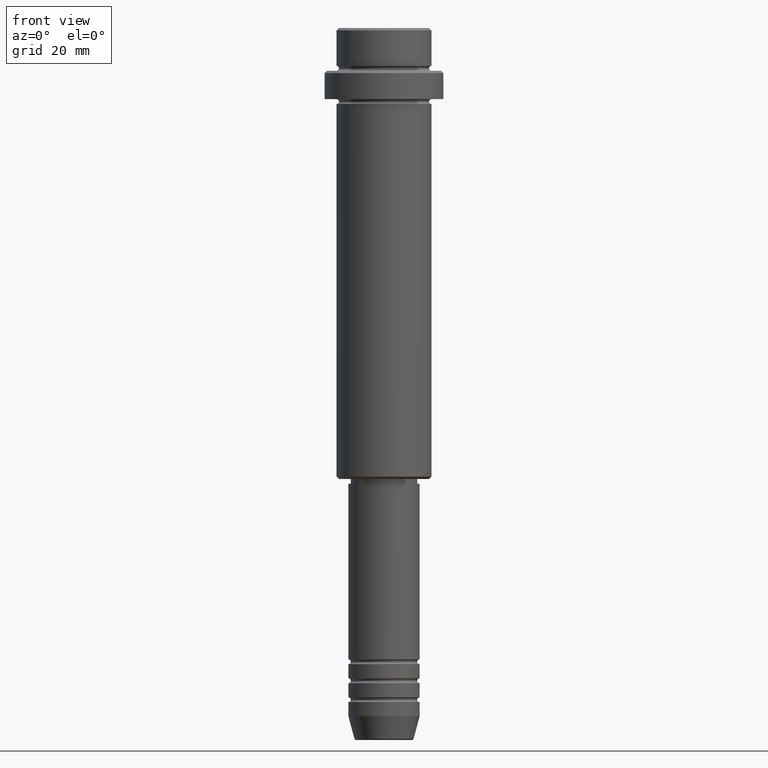
[diagram: clean part render]
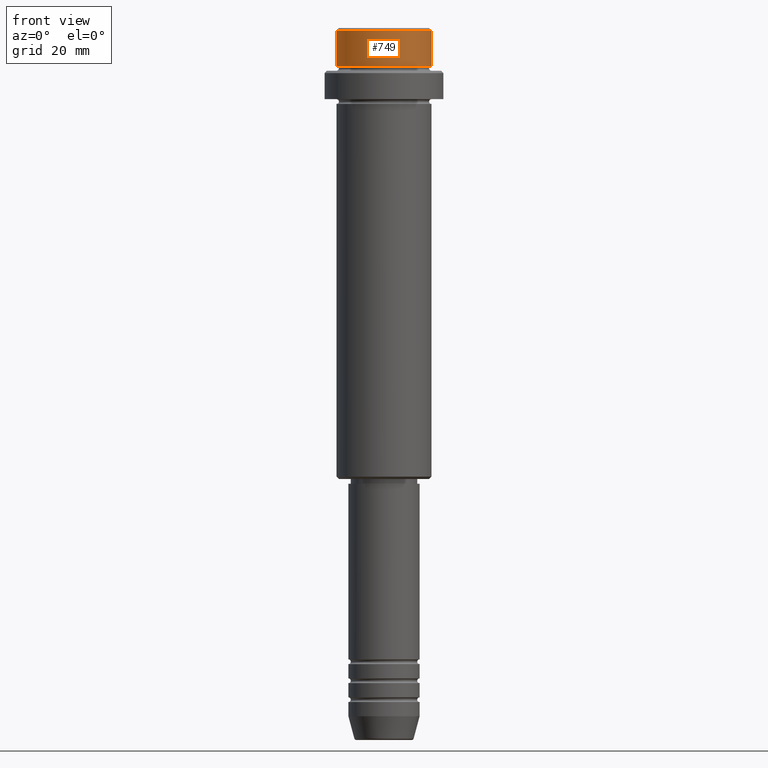
[diagram: same view with one face highlighted and labeled with its STEP entity id]
A machine part, front view. The second image highlights one B-rep face of the part: STEP entity #749.
In plain terms, the highlighted cylindrical surface (partial cylindrical patch) has radius 10 mm, axis along (-0, -0, 1).
Its self-contained STEP definition (entity closure, byte-faithful):
#5 = DIRECTION ( 'NONE',  ( -0.000000000000000000, -0.000000000000000000, 1.000000000000000000 ) ) ;
#39 = DIRECTION ( 'NONE',  ( -0.000000000000000000, -0.000000000000000000, 1.000000000000000000 ) ) ;
#45 = FACE_OUTER_BOUND ( 'NONE', #937, .T. ) ;
#112 = CARTESIAN_POINT ( 'NONE',  ( 9.999999999999998224, 0.000000000000000000, 0.000000000000000000 ) ) ;
#115 = AXIS2_PLACEMENT_3D ( 'NONE', #694, #39, #147 ) ;
#137 = VERTEX_POINT ( 'NONE', #414 ) ;
#147 = DIRECTION ( 'NONE',  ( 1.000000000000000000, 0.000000000000000000, 0.000000000000000000 ) ) ;
#195 = CARTESIAN_POINT ( 'NONE',  ( 0.000000000000000000, 0.000000000000000000, -0.4999999999999970024 ) ) ;
#207 = EDGE_CURVE ( 'NONE', #1043, #137, #1223, .T. ) ;
#223 = DIRECTION ( 'NONE',  ( 1.000000000000000000, 0.000000000000000000, 0.000000000000000000 ) ) ;
#229 = CIRCLE ( 'NONE', #295, 9.999999999999998224 ) ;
#233 = EDGE_CURVE ( 'NONE', #818, #1043, #229, .T. ) ;
#238 = CYLINDRICAL_SURFACE ( 'NONE', #115, 9.999999999999998224 ) ;
#285 = LINE ( 'NONE', #931, #507 ) ;
#295 = AXIS2_PLACEMENT_3D ( 'NONE', #1093, #5, #223 ) ;
#414 = CARTESIAN_POINT ( 'NONE',  ( 9.999999999999998224, 0.000000000000000000, -0.4999999999999970024 ) ) ;
#450 = ORIENTED_EDGE ( 'NONE', *, *, #843, .T. ) ;
#458 = ORIENTED_EDGE ( 'NONE', *, *, #840, .F. ) ;
#507 = VECTOR ( 'NONE', #1285, 1000.000000000000000 ) ;
#550 = CARTESIAN_POINT ( 'NONE',  ( 9.999999999999998224, 0.000000000000000000, -7.999999999999998224 ) ) ;
#558 = ORIENTED_EDGE ( 'NONE', *, *, #233, .T. ) ;
#632 = DIRECTION ( 'NONE',  ( 0.000000000000000000, 0.000000000000000000, -1.000000000000000000 ) ) ;
#679 = CARTESIAN_POINT ( 'NONE',  ( -9.999999999999998224, 1.224646799147353059E-15, -7.999999999999998224 ) ) ;
#694 = CARTESIAN_POINT ( 'NONE',  ( 0.000000000000000000, 0.000000000000000000, 0.000000000000000000 ) ) ;
#703 = DIRECTION ( 'NONE',  ( 1.000000000000000000, 0.000000000000000000, 0.000000000000000000 ) ) ;
#749 = ADVANCED_FACE ( 'NONE', ( #45 ), #238, .T. ) ;
#818 = VERTEX_POINT ( 'NONE', #679 ) ;
#827 = VERTEX_POINT ( 'NONE', #1248 ) ;
#840 = EDGE_CURVE ( 'NONE', #818, #827, #285, .T. ) ;
#843 = EDGE_CURVE ( 'NONE', #137, #827, #879, .T. ) ;
#879 = CIRCLE ( 'NONE', #1151, 9.999999999999998224 ) ;
#894 = ORIENTED_EDGE ( 'NONE', *, *, #207, .T. ) ;
#931 = CARTESIAN_POINT ( 'NONE',  ( -9.999999999999998224, 1.224646799147353059E-15, 0.000000000000000000 ) ) ;
#937 = EDGE_LOOP ( 'NONE', ( #458, #558, #894, #450 ) ) ;
#1043 = VERTEX_POINT ( 'NONE', #550 ) ;
#1093 = CARTESIAN_POINT ( 'NONE',  ( 0.000000000000000000, 0.000000000000000000, -7.999999999999998224 ) ) ;
#1151 = AXIS2_PLACEMENT_3D ( 'NONE', #195, #632, #703 ) ;
#1223 = LINE ( 'NONE', #112, #1234 ) ;
#1234 = VECTOR ( 'NONE', #1313, 1000.000000000000000 ) ;
#1248 = CARTESIAN_POINT ( 'NONE',  ( -9.999999999999998224, 1.224646799147353059E-15, -0.4999999999999970024 ) ) ;
#1285 = DIRECTION ( 'NONE',  ( -0.000000000000000000, -0.000000000000000000, 1.000000000000000000 ) ) ;
#1313 = DIRECTION ( 'NONE',  ( -0.000000000000000000, -0.000000000000000000, 1.000000000000000000 ) ) ;